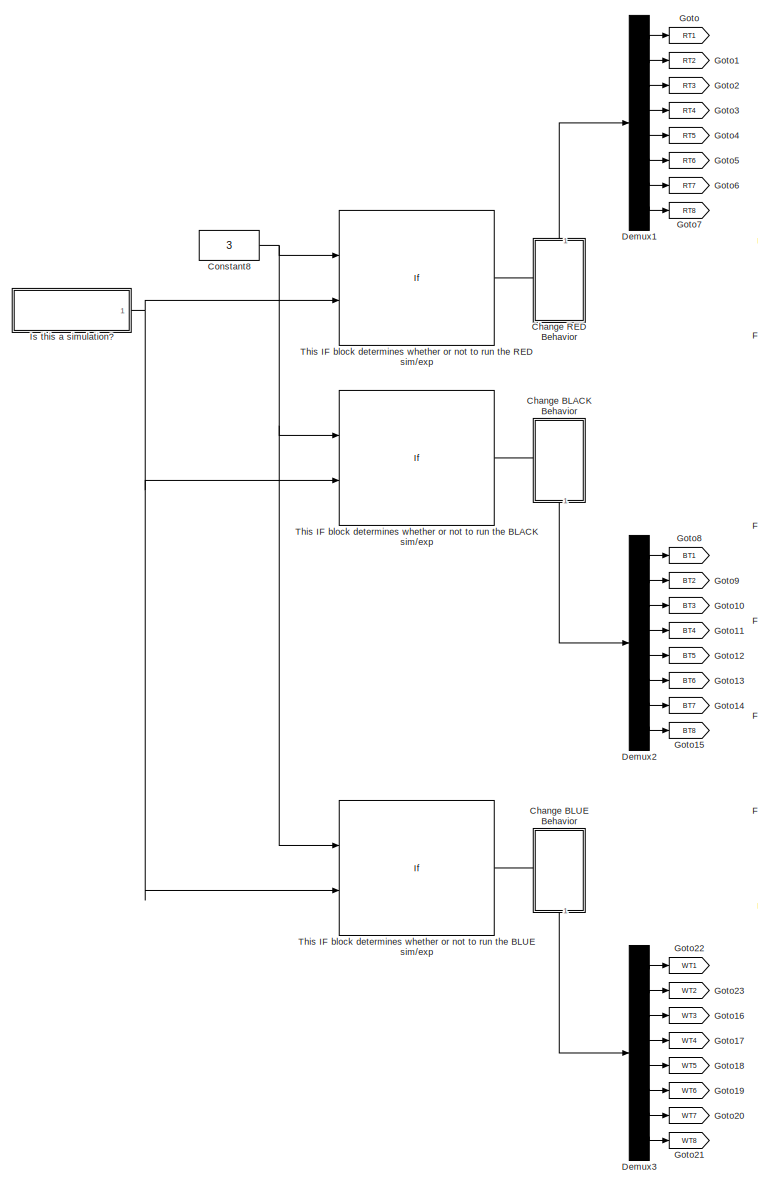
[diagram: root canvas - part 1/2, left side, full height]
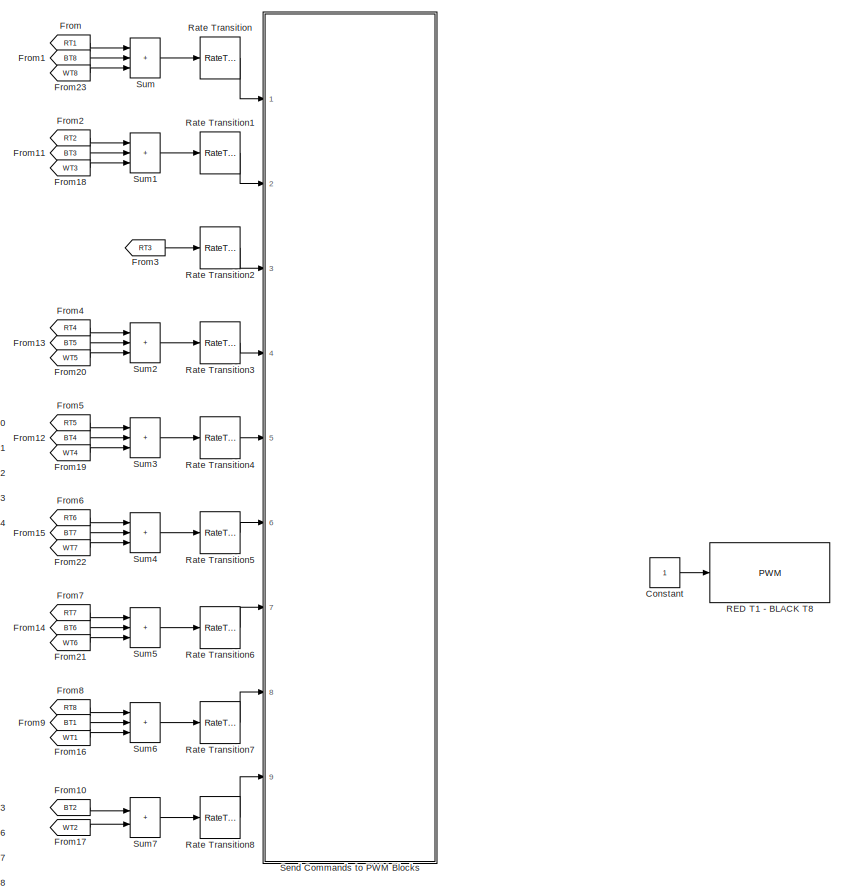
[diagram: root canvas - part 2/2, right side, full height]
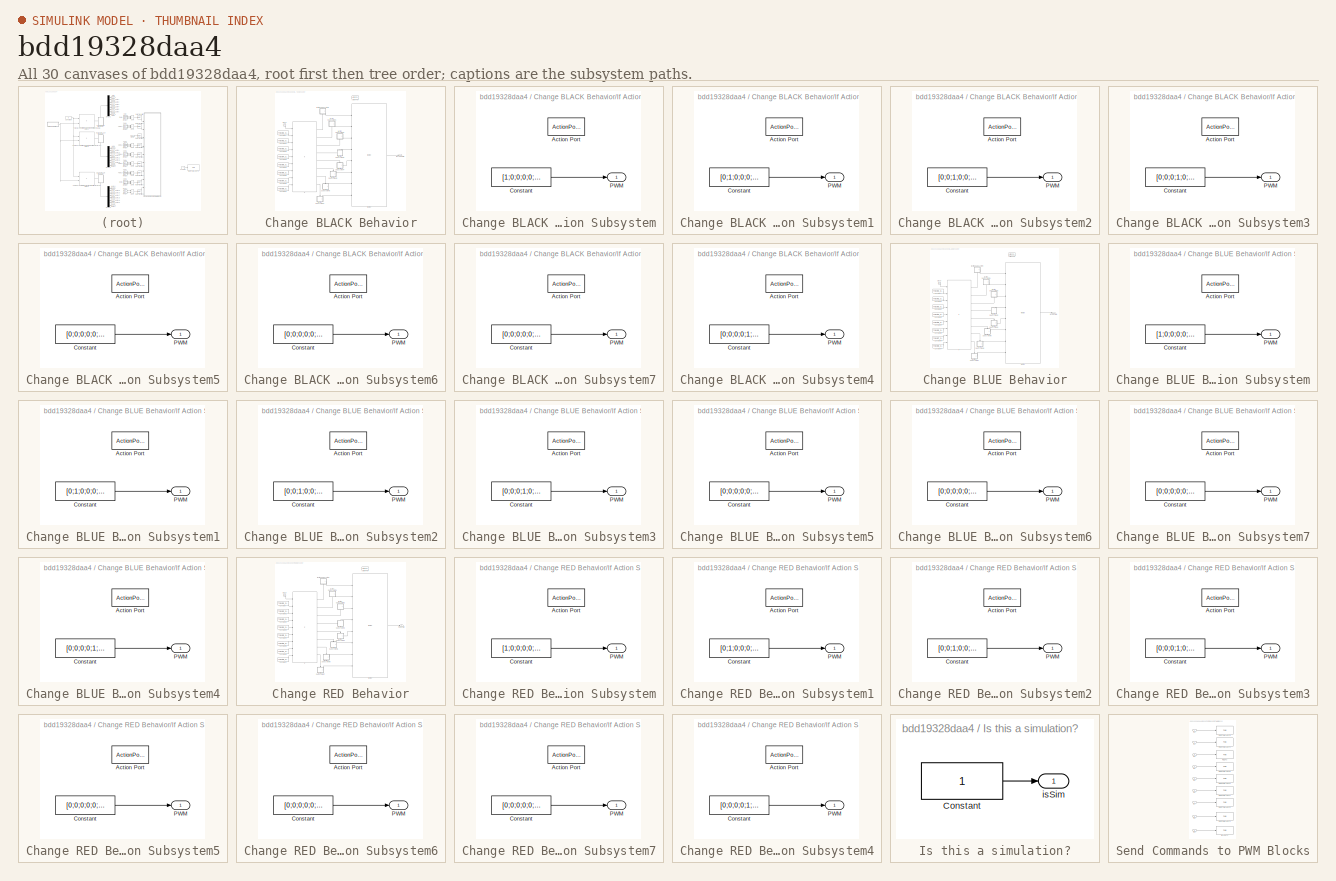
[diagram: thumbnail index - all 30 canvases of the model, root first then tree order]
MODEL slx_bdd19328daa4
KIND model
CONFIG AbsTol = auto
CONFIG EnableMultiTasking = on
CONFIG FixedStep = auto
CONFIG MaxStep = auto
CONFIG MinStep = auto
CONFIG RelTol = 1e-3
CONFIG SampleTimeConstraint = Unconstrained
CONFIG Solver = FixedStepAuto
CONFIG SolverName = FixedStepAuto
CONFIG StartTime = 0.0
CONFIG StopTime = 5
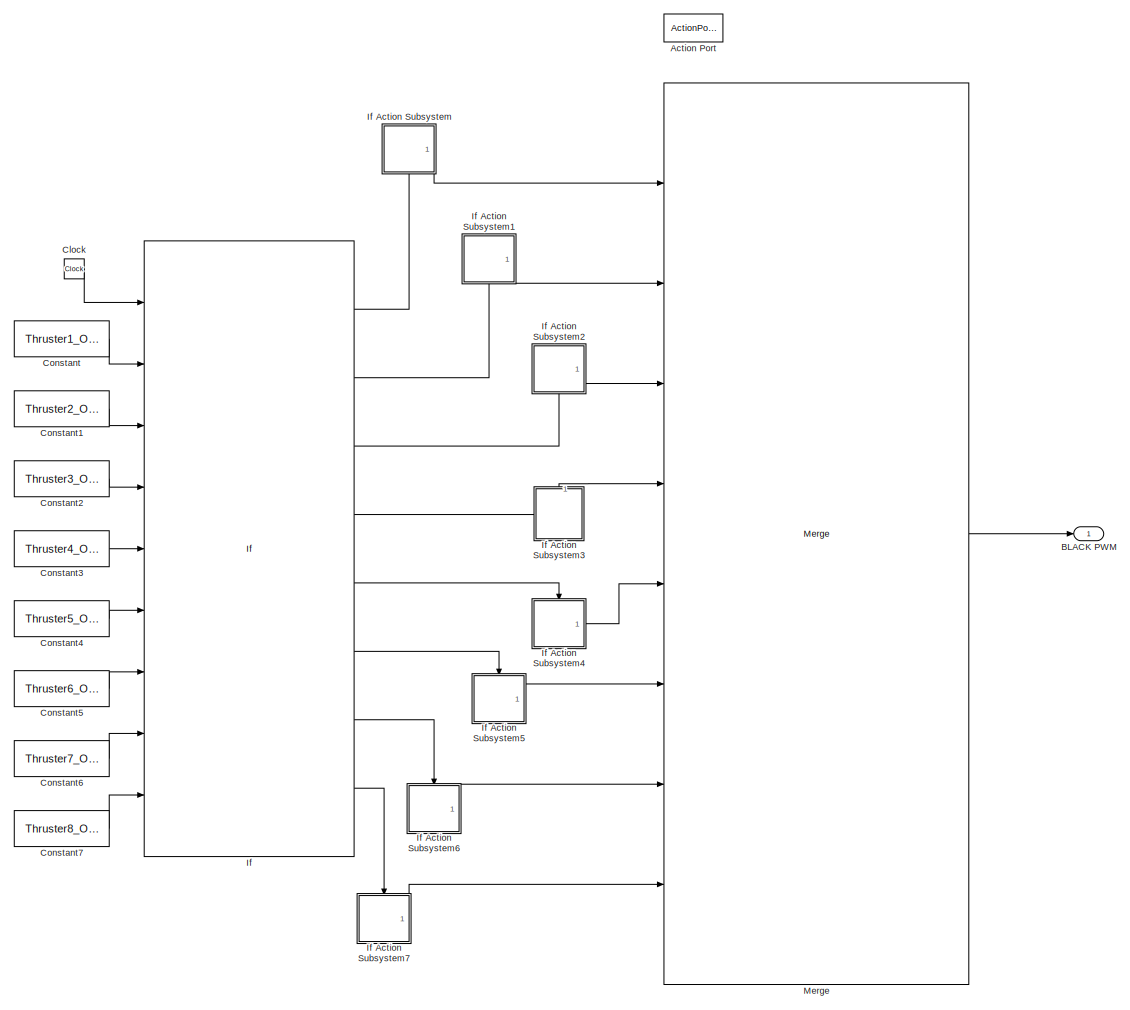
[diagram: Change BLACK Behavior - part 1/1, most of the canvas]
BLOCK [SubSystem] Change BLACK Behavior
  Commented = on
  NameLocation = right
  Ports = [0, 1, 0, 0, 0, 0, 0, 1]
  RequestExecContextInheritance = off
  TreatAsAtomicUnit = on
BLOCK [ActionPort] Change BLACK Behavior/Action Port
  ActionPortLabel = if(u1 == 2 | u2 == 1)
BLOCK [Outport] Change BLACK Behavior/BLACK PWM
  VectorParamsAs1DForOutWhenUnconnected = off
BLOCK [Clock] Change BLACK Behavior/Clock
BLOCK [Constant] Change BLACK Behavior/Constant
  Value = Thruster1_OnTime
BLOCK [Constant] Change BLACK Behavior/Constant1
  Value = Thruster2_OnTime
BLOCK [Constant] Change BLACK Behavior/Constant2
  Value = Thruster3_OnTime
BLOCK [Constant] Change BLACK Behavior/Constant3
  Value = Thruster4_OnTime
BLOCK [Constant] Change BLACK Behavior/Constant4
  Value = Thruster5_OnTime
BLOCK [Constant] Change BLACK Behavior/Constant5
  Value = Thruster6_OnTime
BLOCK [Constant] Change BLACK Behavior/Constant6
  Value = Thruster7_OnTime
BLOCK [Constant] Change BLACK Behavior/Constant7
  Value = Thruster8_OnTime
BLOCK [If] Change BLACK Behavior/If
  ElseIfExpressions = u1 < u3, u1 < u4, u1 < u5, u1 < u6, u1 < u7, u1 < u8, u1 < u9
  IfExpression = u1 < u2
  NumInputs = 9
  Ports = [9, 8]
  ShowElse = off
BLOCK [SubSystem] Change BLACK Behavior/If Action Subsystem
  NameLocation = top
  Ports = [0, 1, 0, 0, 0, 0, 0, 1]
  RequestExecContextInheritance = off
  TreatAsAtomicUnit = on
BLOCK [ActionPort] Change BLACK Behavior/If Action Subsystem/Action Port
  ActionPortLabel = if(u1 < u2)
BLOCK [Constant] Change BLACK Behavior/If Action Subsystem/Constant
  Value = [1;0;0;0;0;0;0;0]
BLOCK [Outport] Change BLACK Behavior/If Action Subsystem/PWM
  VectorParamsAs1DForOutWhenUnconnected = off
BLOCK [SubSystem] Change BLACK Behavior/If Action Subsystem1
  NameLocation = top
  Ports = [0, 1, 0, 0, 0, 0, 0, 1]
  RequestExecContextInheritance = off
  TreatAsAtomicUnit = on
BLOCK [ActionPort] Change BLACK Behavior/If Action Subsystem1/Action Port
  ActionPortLabel = elseif(u1 < u3)
BLOCK [Constant] Change BLACK Behavior/If Action Subsystem1/Constant
  Value = [0;1;0;0;0;0;0;0]
BLOCK [Outport] Change BLACK Behavior/If Action Subsystem1/PWM
  VectorParamsAs1DForOutWhenUnconnected = off
BLOCK [SubSystem] Change BLACK Behavior/If Action Subsystem2
  NameLocation = top
  Ports = [0, 1, 0, 0, 0, 0, 0, 1]
  RequestExecContextInheritance = off
  TreatAsAtomicUnit = on
BLOCK [ActionPort] Change BLACK Behavior/If Action Subsystem2/Action Port
  ActionPortLabel = elseif( u1 < u4)
BLOCK [Constant] Change BLACK Behavior/If Action Subsystem2/Constant
  Value = [0;0;1;0;0;0;0;0]
BLOCK [Outport] Change BLACK Behavior/If Action Subsystem2/PWM
  VectorParamsAs1DForOutWhenUnconnected = off
BLOCK [SubSystem] Change BLACK Behavior/If Action Subsystem3
  NameLocation = right
  Ports = [0, 1, 0, 0, 0, 0, 0, 1]
  RequestExecContextInheritance = off
  TreatAsAtomicUnit = on
BLOCK [ActionPort] Change BLACK Behavior/If Action Subsystem3/Action Port
  ActionPortLabel = elseif( u1 < u5)
BLOCK [Constant] Change BLACK Behavior/If Action Subsystem3/Constant
  Value = [0;0;0;1;0;0;0;0]
BLOCK [Outport] Change BLACK Behavior/If Action Subsystem3/PWM
  VectorParamsAs1DForOutWhenUnconnected = off
BLOCK [SubSystem] Change BLACK Behavior/If Action Subsystem4
  Ports = [0, 1, 0, 0, 0, 0, 0, 1]
  RequestExecContextInheritance = off
  TreatAsAtomicUnit = on
BLOCK [ActionPort] Change BLACK Behavior/If Action Subsystem4/Action Port
  ActionPortLabel = elseif( u1 < u6)
BLOCK [Constant] Change BLACK Behavior/If Action Subsystem4/Constant
  Value = [0;0;0;0;1;0;0;0]
BLOCK [Outport] Change BLACK Behavior/If Action Subsystem4/PWM
  VectorParamsAs1DForOutWhenUnconnected = off
BLOCK [SubSystem] Change BLACK Behavior/If Action Subsystem5
  Ports = [0, 1, 0, 0, 0, 0, 0, 1]
  RequestExecContextInheritance = off
  TreatAsAtomicUnit = on
BLOCK [ActionPort] Change BLACK Behavior/If Action Subsystem5/Action Port
  ActionPortLabel = elseif( u1 < u7)
BLOCK [Constant] Change BLACK Behavior/If Action Subsystem5/Constant
  Value = [0;0;0;0;0;1;0;0]
BLOCK [Outport] Change BLACK Behavior/If Action Subsystem5/PWM
  VectorParamsAs1DForOutWhenUnconnected = off
BLOCK [SubSystem] Change BLACK Behavior/If Action Subsystem6
  Ports = [0, 1, 0, 0, 0, 0, 0, 1]
  RequestExecContextInheritance = off
  TreatAsAtomicUnit = on
BLOCK [ActionPort] Change BLACK Behavior/If Action Subsystem6/Action Port
  ActionPortLabel = elseif( u1 < u8)
BLOCK [Constant] Change BLACK Behavior/If Action Subsystem6/Constant
  Value = [0;0;0;0;0;0;1;0]
BLOCK [Outport] Change BLACK Behavior/If Action Subsystem6/PWM
  VectorParamsAs1DForOutWhenUnconnected = off
BLOCK [SubSystem] Change BLACK Behavior/If Action Subsystem7
  Ports = [0, 1, 0, 0, 0, 0, 0, 1]
  RequestExecContextInheritance = off
  TreatAsAtomicUnit = on
BLOCK [ActionPort] Change BLACK Behavior/If Action Subsystem7/Action Port
  ActionPortLabel = elseif( u1 < u9)
BLOCK [Constant] Change BLACK Behavior/If Action Subsystem7/Constant
  Value = [0;0;0;0;0;0;0;1]
BLOCK [Outport] Change BLACK Behavior/If Action Subsystem7/PWM
  VectorParamsAs1DForOutWhenUnconnected = off
BLOCK [Merge] Change BLACK Behavior/Merge
  Inputs = 8
  Ports = [8, 1]
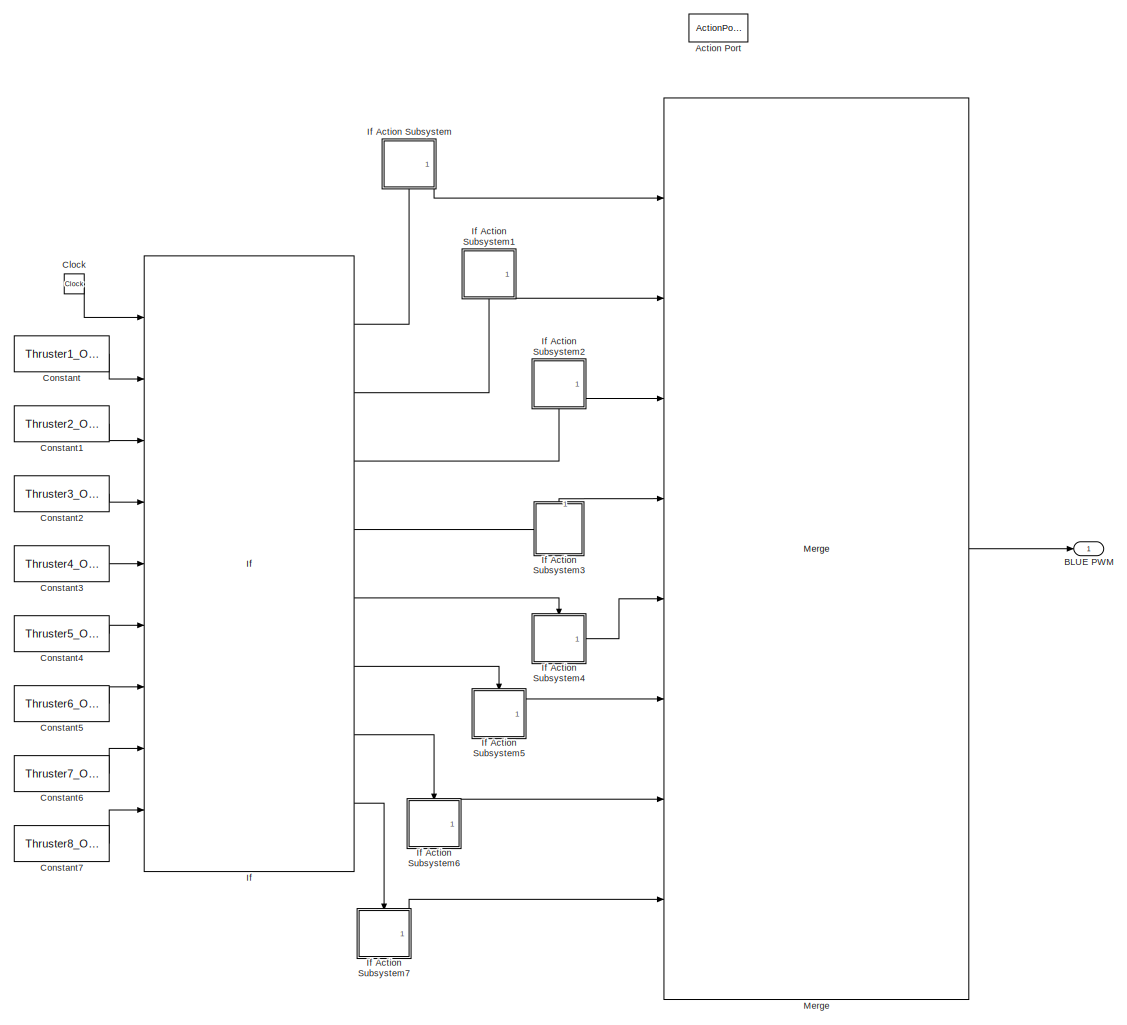
[diagram: Change BLUE Behavior - part 1/1, most of the canvas]
BLOCK [SubSystem] Change BLUE Behavior
  Commented = on
  NameLocation = right
  Ports = [0, 1, 0, 0, 0, 0, 0, 1]
  RequestExecContextInheritance = off
  TreatAsAtomicUnit = on
BLOCK [ActionPort] Change BLUE Behavior/Action Port
  ActionPortLabel = if(u1 == 3 | u2 == 1)
BLOCK [Outport] Change BLUE Behavior/BLUE PWM
  VectorParamsAs1DForOutWhenUnconnected = off
BLOCK [Clock] Change BLUE Behavior/Clock
BLOCK [Constant] Change BLUE Behavior/Constant
  Value = Thruster1_OnTime
BLOCK [Constant] Change BLUE Behavior/Constant1
  Value = Thruster2_OnTime
BLOCK [Constant] Change BLUE Behavior/Constant2
  Value = Thruster3_OnTime
BLOCK [Constant] Change BLUE Behavior/Constant3
  Value = Thruster4_OnTime
BLOCK [Constant] Change BLUE Behavior/Constant4
  Value = Thruster5_OnTime
BLOCK [Constant] Change BLUE Behavior/Constant5
  Value = Thruster6_OnTime
BLOCK [Constant] Change BLUE Behavior/Constant6
  Value = Thruster7_OnTime
BLOCK [Constant] Change BLUE Behavior/Constant7
  Value = Thruster8_OnTime
BLOCK [If] Change BLUE Behavior/If
  ElseIfExpressions = u1 < u3, u1 < u4, u1 < u5, u1 < u6, u1 < u7, u1 < u8, u1 < u9
  IfExpression = u1 < u2
  NumInputs = 9
  Ports = [9, 8]
  ShowElse = off
BLOCK [SubSystem] Change BLUE Behavior/If Action Subsystem
  NameLocation = top
  Ports = [0, 1, 0, 0, 0, 0, 0, 1]
  RequestExecContextInheritance = off
  TreatAsAtomicUnit = on
BLOCK [ActionPort] Change BLUE Behavior/If Action Subsystem/Action Port
  ActionPortLabel = if(u1 < u2)
BLOCK [Constant] Change BLUE Behavior/If Action Subsystem/Constant
  Value = [1;0;0;0;0;0;0;0]
BLOCK [Outport] Change BLUE Behavior/If Action Subsystem/PWM
  VectorParamsAs1DForOutWhenUnconnected = off
BLOCK [SubSystem] Change BLUE Behavior/If Action Subsystem1
  NameLocation = top
  Ports = [0, 1, 0, 0, 0, 0, 0, 1]
  RequestExecContextInheritance = off
  TreatAsAtomicUnit = on
BLOCK [ActionPort] Change BLUE Behavior/If Action Subsystem1/Action Port
  ActionPortLabel = elseif(u1 < u3)
BLOCK [Constant] Change BLUE Behavior/If Action Subsystem1/Constant
  Value = [0;1;0;0;0;0;0;0]
BLOCK [Outport] Change BLUE Behavior/If Action Subsystem1/PWM
  VectorParamsAs1DForOutWhenUnconnected = off
BLOCK [SubSystem] Change BLUE Behavior/If Action Subsystem2
  NameLocation = top
  Ports = [0, 1, 0, 0, 0, 0, 0, 1]
  RequestExecContextInheritance = off
  TreatAsAtomicUnit = on
BLOCK [ActionPort] Change BLUE Behavior/If Action Subsystem2/Action Port
  ActionPortLabel = elseif( u1 < u4)
BLOCK [Constant] Change BLUE Behavior/If Action Subsystem2/Constant
  Value = [0;0;1;0;0;0;0;0]
BLOCK [Outport] Change BLUE Behavior/If Action Subsystem2/PWM
  VectorParamsAs1DForOutWhenUnconnected = off
BLOCK [SubSystem] Change BLUE Behavior/If Action Subsystem3
  NameLocation = right
  Ports = [0, 1, 0, 0, 0, 0, 0, 1]
  RequestExecContextInheritance = off
  TreatAsAtomicUnit = on
BLOCK [ActionPort] Change BLUE Behavior/If Action Subsystem3/Action Port
  ActionPortLabel = elseif( u1 < u5)
BLOCK [Constant] Change BLUE Behavior/If Action Subsystem3/Constant
  Value = [0;0;0;1;0;0;0;0]
BLOCK [Outport] Change BLUE Behavior/If Action Subsystem3/PWM
  VectorParamsAs1DForOutWhenUnconnected = off
BLOCK [SubSystem] Change BLUE Behavior/If Action Subsystem4
  Ports = [0, 1, 0, 0, 0, 0, 0, 1]
  RequestExecContextInheritance = off
  TreatAsAtomicUnit = on
BLOCK [ActionPort] Change BLUE Behavior/If Action Subsystem4/Action Port
  ActionPortLabel = elseif( u1 < u6)
BLOCK [Constant] Change BLUE Behavior/If Action Subsystem4/Constant
  Value = [0;0;0;0;1;0;0;0]
BLOCK [Outport] Change BLUE Behavior/If Action Subsystem4/PWM
  VectorParamsAs1DForOutWhenUnconnected = off
BLOCK [SubSystem] Change BLUE Behavior/If Action Subsystem5
  Ports = [0, 1, 0, 0, 0, 0, 0, 1]
  RequestExecContextInheritance = off
  TreatAsAtomicUnit = on
BLOCK [ActionPort] Change BLUE Behavior/If Action Subsystem5/Action Port
  ActionPortLabel = elseif( u1 < u7)
BLOCK [Constant] Change BLUE Behavior/If Action Subsystem5/Constant
  Value = [0;0;0;0;0;1;0;0]
BLOCK [Outport] Change BLUE Behavior/If Action Subsystem5/PWM
  VectorParamsAs1DForOutWhenUnconnected = off
BLOCK [SubSystem] Change BLUE Behavior/If Action Subsystem6
  Ports = [0, 1, 0, 0, 0, 0, 0, 1]
  RequestExecContextInheritance = off
  TreatAsAtomicUnit = on
BLOCK [ActionPort] Change BLUE Behavior/If Action Subsystem6/Action Port
  ActionPortLabel = elseif( u1 < u8)
BLOCK [Constant] Change BLUE Behavior/If Action Subsystem6/Constant
  Value = [0;0;0;0;0;0;1;0]
BLOCK [Outport] Change BLUE Behavior/If Action Subsystem6/PWM
  VectorParamsAs1DForOutWhenUnconnected = off
BLOCK [SubSystem] Change BLUE Behavior/If Action Subsystem7
  Ports = [0, 1, 0, 0, 0, 0, 0, 1]
  RequestExecContextInheritance = off
  TreatAsAtomicUnit = on
BLOCK [ActionPort] Change BLUE Behavior/If Action Subsystem7/Action Port
  ActionPortLabel = elseif( u1 < u9)
BLOCK [Constant] Change BLUE Behavior/If Action Subsystem7/Constant
  Value = [0;0;0;0;0;0;0;1]
BLOCK [Outport] Change BLUE Behavior/If Action Subsystem7/PWM
  VectorParamsAs1DForOutWhenUnconnected = off
BLOCK [Merge] Change BLUE Behavior/Merge
  Inputs = 8
  Ports = [8, 1]
BLOCK [SubSystem] Change RED Behavior
  Commented = on
  NameLocation = right
  Ports = [0, 1, 0, 0, 0, 0, 0, 1]
  RequestExecContextInheritance = off
  TreatAsAtomicUnit = on
BLOCK [ActionPort] Change RED Behavior/Action Port
  ActionPortLabel = if(u1 == 1 | u2 == 1)
BLOCK [Clock] Change RED Behavior/Clock
BLOCK [Constant] Change RED Behavior/Constant
  Value = Thruster1_OnTime
BLOCK [Constant] Change RED Behavior/Constant1
  Value = Thruster2_OnTime
BLOCK [Constant] Change RED Behavior/Constant2
  Value = Thruster3_OnTime
BLOCK [Constant] Change RED Behavior/Constant3
  Value = Thruster4_OnTime
BLOCK [Constant] Change RED Behavior/Constant4
  Value = Thruster5_OnTime
BLOCK [Constant] Change RED Behavior/Constant5
  Value = Thruster6_OnTime
BLOCK [Constant] Change RED Behavior/Constant6
  Value = Thruster7_OnTime
BLOCK [Constant] Change RED Behavior/Constant7
  Value = Thruster8_OnTime
BLOCK [If] Change RED Behavior/If
  ElseIfExpressions = u1 < u3, u1 < u4, u1 < u5, u1 < u6, u1 < u7, u1 < u8, u1 < u9
  IfExpression = u1 < u2
  NumInputs = 9
  Ports = [9, 8]
  ShowElse = off
BLOCK [SubSystem] Change RED Behavior/If Action Subsystem
  NameLocation = top
  Ports = [0, 1, 0, 0, 0, 0, 0, 1]
  RequestExecContextInheritance = off
  TreatAsAtomicUnit = on
BLOCK [ActionPort] Change RED Behavior/If Action Subsystem/Action Port
  ActionPortLabel = if(u1 < u2)
BLOCK [Constant] Change RED Behavior/If Action Subsystem/Constant
  Value = [1;0;0;0;0;0;0;0]
BLOCK [Outport] Change RED Behavior/If Action Subsystem/PWM
  VectorParamsAs1DForOutWhenUnconnected = off
BLOCK [SubSystem] Change RED Behavior/If Action Subsystem1
  NameLocation = top
  Ports = [0, 1, 0, 0, 0, 0, 0, 1]
  RequestExecContextInheritance = off
  TreatAsAtomicUnit = on
BLOCK [ActionPort] Change RED Behavior/If Action Subsystem1/Action Port
  ActionPortLabel = elseif(u1 < u3)
BLOCK [Constant] Change RED Behavior/If Action Subsystem1/Constant
  Value = [0;1;0;0;0;0;0;0]
BLOCK [Outport] Change RED Behavior/If Action Subsystem1/PWM
  VectorParamsAs1DForOutWhenUnconnected = off
BLOCK [SubSystem] Change RED Behavior/If Action Subsystem2
  NameLocation = top
  Ports = [0, 1, 0, 0, 0, 0, 0, 1]
  RequestExecContextInheritance = off
  TreatAsAtomicUnit = on
BLOCK [ActionPort] Change RED Behavior/If Action Subsystem2/Action Port
  ActionPortLabel = elseif( u1 < u4)
BLOCK [Constant] Change RED Behavior/If Action Subsystem2/Constant
  Value = [0;0;1;0;0;0;0;0]
BLOCK [Outport] Change RED Behavior/If Action Subsystem2/PWM
  VectorParamsAs1DForOutWhenUnconnected = off
BLOCK [SubSystem] Change RED Behavior/If Action Subsystem3
  NameLocation = right
  Ports = [0, 1, 0, 0, 0, 0, 0, 1]
  RequestExecContextInheritance = off
  TreatAsAtomicUnit = on
BLOCK [ActionPort] Change RED Behavior/If Action Subsystem3/Action Port
  ActionPortLabel = elseif( u1 < u5)
BLOCK [Constant] Change RED Behavior/If Action Subsystem3/Constant
  Value = [0;0;0;1;0;0;0;0]
BLOCK [Outport] Change RED Behavior/If Action Subsystem3/PWM
  VectorParamsAs1DForOutWhenUnconnected = off
BLOCK [SubSystem] Change RED Behavior/If Action Subsystem4
  Ports = [0, 1, 0, 0, 0, 0, 0, 1]
  RequestExecContextInheritance = off
  TreatAsAtomicUnit = on
BLOCK [ActionPort] Change RED Behavior/If Action Subsystem4/Action Port
  ActionPortLabel = elseif( u1 < u6)
BLOCK [Constant] Change RED Behavior/If Action Subsystem4/Constant
  Value = [0;0;0;0;1;0;0;0]
BLOCK [Outport] Change RED Behavior/If Action Subsystem4/PWM
  VectorParamsAs1DForOutWhenUnconnected = off
BLOCK [SubSystem] Change RED Behavior/If Action Subsystem5
  Ports = [0, 1, 0, 0, 0, 0, 0, 1]
  RequestExecContextInheritance = off
  TreatAsAtomicUnit = on
BLOCK [ActionPort] Change RED Behavior/If Action Subsystem5/Action Port
  ActionPortLabel = elseif( u1 < u7)
BLOCK [Constant] Change RED Behavior/If Action Subsystem5/Constant
  Value = [0;0;0;0;0;1;0;0]
BLOCK [Outport] Change RED Behavior/If Action Subsystem5/PWM
  VectorParamsAs1DForOutWhenUnconnected = off
BLOCK [SubSystem] Change RED Behavior/If Action Subsystem6
  Ports = [0, 1, 0, 0, 0, 0, 0, 1]
  RequestExecContextInheritance = off
  TreatAsAtomicUnit = on
BLOCK [ActionPort] Change RED Behavior/If Action Subsystem6/Action Port
  ActionPortLabel = elseif( u1 < u8)
BLOCK [Constant] Change RED Behavior/If Action Subsystem6/Constant
  Value = [0;0;0;0;0;0;1;0]
BLOCK [Outport] Change RED Behavior/If Action Subsystem6/PWM
  VectorParamsAs1DForOutWhenUnconnected = off
BLOCK [SubSystem] Change RED Behavior/If Action Subsystem7
  Ports = [0, 1, 0, 0, 0, 0, 0, 1]
  RequestExecContextInheritance = off
  TreatAsAtomicUnit = on
BLOCK [ActionPort] Change RED Behavior/If Action Subsystem7/Action Port
  ActionPortLabel = elseif( u1 < u9)
BLOCK [Constant] Change RED Behavior/If Action Subsystem7/Constant
  Value = [0;0;0;0;0;0;0;1]
BLOCK [Outport] Change RED Behavior/If Action Subsystem7/PWM
  VectorParamsAs1DForOutWhenUnconnected = off
BLOCK [Merge] Change RED Behavior/Merge
  Inputs = 8
  Ports = [8, 1]
BLOCK [Outport] Change RED Behavior/RED PWM
  VectorParamsAs1DForOutWhenUnconnected = off
BLOCK [Constant] Constant
BLOCK [Constant] Constant8
  Commented = on
  Value = 3
BLOCK [Demux] Demux1
  Commented = on
  Outputs = 8
  Ports = [1, 8]
BLOCK [Demux] Demux2
  Commented = on
  Outputs = 8
  Ports = [1, 8]
BLOCK [Demux] Demux3
  Commented = on
  Outputs = 8
  Ports = [1, 8]
BLOCK [From] From
  Commented = on
  GotoTag = RT1
BLOCK [From] From1
  Commented = on
  GotoTag = BT8
BLOCK [From] From10
  Commented = on
  GotoTag = BT2
BLOCK [From] From11
  Commented = on
  GotoTag = BT3
BLOCK [From] From12
  Commented = on
  GotoTag = BT4
BLOCK [From] From13
  Commented = on
  GotoTag = BT5
BLOCK [From] From14
  Commented = on
  GotoTag = BT6
BLOCK [From] From15
  Commented = on
  GotoTag = BT7
BLOCK [From] From16
  Commented = on
  GotoTag = WT1
BLOCK [From] From17
  Commented = on
  GotoTag = WT2
BLOCK [From] From18
  Commented = on
  GotoTag = WT3
BLOCK [From] From19
  Commented = on
  GotoTag = WT4
BLOCK [From] From2
  Commented = on
  GotoTag = RT2
BLOCK [From] From20
  Commented = on
  GotoTag = WT5
BLOCK [From] From21
  Commented = on
  GotoTag = WT6
BLOCK [From] From22
  Commented = on
  GotoTag = WT7
BLOCK [From] From23
  Commented = on
  GotoTag = WT8
BLOCK [From] From3
  Commented = on
  GotoTag = RT3
BLOCK [From] From4
  Commented = on
  GotoTag = RT4
BLOCK [From] From5
  Commented = on
  GotoTag = RT5
BLOCK [From] From6
  Commented = on
  GotoTag = RT6
BLOCK [From] From7
  Commented = on
  GotoTag = RT7
BLOCK [From] From8
  Commented = on
  GotoTag = RT8
BLOCK [From] From9
  Commented = on
  GotoTag = BT1
BLOCK [Goto] Goto
  Commented = on
  GotoTag = RT1
BLOCK [Goto] Goto1
  Commented = on
  GotoTag = RT2
BLOCK [Goto] Goto10
  Commented = on
  GotoTag = BT3
BLOCK [Goto] Goto11
  Commented = on
  GotoTag = BT4
BLOCK [Goto] Goto12
  Commented = on
  GotoTag = BT5
BLOCK [Goto] Goto13
  Commented = on
  GotoTag = BT6
BLOCK [Goto] Goto14
  Commented = on
  GotoTag = BT7
BLOCK [Goto] Goto15
  Commented = on
  GotoTag = BT8
BLOCK [Goto] Goto16
  Commented = on
  GotoTag = WT3
BLOCK [Goto] Goto17
  Commented = on
  GotoTag = WT4
BLOCK [Goto] Goto18
  Commented = on
  GotoTag = WT5
BLOCK [Goto] Goto19
  Commented = on
  GotoTag = WT6
BLOCK [Goto] Goto2
  Commented = on
  GotoTag = RT3
BLOCK [Goto] Goto20
  Commented = on
  GotoTag = WT7
BLOCK [Goto] Goto21
  Commented = on
  GotoTag = WT8
BLOCK [Goto] Goto22
  Commented = on
  GotoTag = WT1
BLOCK [Goto] Goto23
  Commented = on
  GotoTag = WT2
BLOCK [Goto] Goto3
  Commented = on
  GotoTag = RT4
BLOCK [Goto] Goto4
  Commented = on
  GotoTag = RT5
BLOCK [Goto] Goto5
  Commented = on
  GotoTag = RT6
BLOCK [Goto] Goto6
  Commented = on
  GotoTag = RT7
BLOCK [Goto] Goto7
  Commented = on
  GotoTag = RT8
BLOCK [Goto] Goto8
  Commented = on
  GotoTag = BT1
BLOCK [Goto] Goto9
  Commented = on
  GotoTag = BT2
BLOCK [SubSystem] Is this a simulation?
  Commented = on
  Ports = [0, 1]
  RequestExecContextInheritance = off
BLOCK [Constant] Is this a simulation?/Constant
  SampleTime = -1
BLOCK [Outport] Is this a simulation?/isSim
  VectorParamsAs1DForOutWhenUnconnected = off
BLOCK [Reference] RED T1 - BLACK T8  REF=raspberrypiBasiclib/PWM
  Ports = [1]
  SourceBlock = raspberrypiBasiclib/PWM
  SourceProductBaseCode = RASPPI
  SourceType = raspi.internal.PWMBlock
BLOCK [RateTransition] Rate Transition
  Commented = on
  OutPortSampleTime = 0.1
BLOCK [RateTransition] Rate Transition1
  Commented = on
  OutPortSampleTime = 0.1
BLOCK [RateTransition] Rate Transition2
  Commented = on
  OutPortSampleTime = 0.1
BLOCK [RateTransition] Rate Transition3
  Commented = on
  OutPortSampleTime = 0.1
BLOCK [RateTransition] Rate Transition4
  Commented = on
  OutPortSampleTime = 0.1
BLOCK [RateTransition] Rate Transition5
  Commented = on
  OutPortSampleTime = 0.1
BLOCK [RateTransition] Rate Transition6
  Commented = on
  OutPortSampleTime = 0.1
BLOCK [RateTransition] Rate Transition7
  Commented = on
  OutPortSampleTime = 0.1
BLOCK [RateTransition] Rate Transition8
  Commented = on
  OutPortSampleTime = 0.1
BLOCK [SubSystem] Send Commands to PWM Blocks
  Commented = on
  Ports = [9]
  RequestExecContextInheritance = off
  SystemSampleTime = 0.1
  TreatAsAtomicUnit = on
BLOCK [Reference] Send Commands to PWM Blocks/BLACK T2  REF=raspberrypiBasiclib/PWM
  Ports = [1]
  SourceBlock = raspberrypiBasiclib/PWM
  SourceProductBaseCode = RASPPI
  SourceType = raspi.internal.PWMBlock
BLOCK [Inport] Send Commands to PWM Blocks/In1
BLOCK [Inport] Send Commands to PWM Blocks/In2
  Port = 2
BLOCK [Inport] Send Commands to PWM Blocks/In3
  Port = 3
BLOCK [Inport] Send Commands to PWM Blocks/In4
  Port = 4
BLOCK [Inport] Send Commands to PWM Blocks/In5
  Port = 5
BLOCK [Inport] Send Commands to PWM Blocks/In6
  Port = 6
BLOCK [Inport] Send Commands to PWM Blocks/In7
  Port = 7
BLOCK [Inport] Send Commands to PWM Blocks/In8
  Port = 8
BLOCK [Inport] Send Commands to PWM Blocks/In9
  Port = 9
BLOCK [Reference] Send Commands to PWM Blocks/RED T1 - BLACK T8  REF=raspberrypiBasiclib/PWM
  Ports = [1]
  SourceBlock = raspberrypiBasiclib/PWM
  SourceProductBaseCode = RASPPI
  SourceType = raspi.internal.PWMBlock
BLOCK [Reference] Send Commands to PWM Blocks/RED T2 - BLACK T3  REF=raspberrypiBasiclib/PWM
  Ports = [1]
  SourceBlock = raspberrypiBasiclib/PWM
  SourceProductBaseCode = RASPPI
  SourceType = raspi.internal.PWMBlock
BLOCK [Reference] Send Commands to PWM Blocks/RED T3  REF=raspberrypiBasiclib/PWM
  Ports = [1]
  SourceBlock = raspberrypiBasiclib/PWM
  SourceProductBaseCode = RASPPI
  SourceType = raspi.internal.PWMBlock
BLOCK [Reference] Send Commands to PWM Blocks/RED T4 - BLACK T5  REF=raspberrypiBasiclib/PWM
  Ports = [1]
  SourceBlock = raspberrypiBasiclib/PWM
  SourceProductBaseCode = RASPPI
  SourceType = raspi.internal.PWMBlock
BLOCK [Reference] Send Commands to PWM Blocks/RED T5 - BLACK T4  REF=raspberrypiBasiclib/PWM
  Ports = [1]
  SourceBlock = raspberrypiBasiclib/PWM
  SourceProductBaseCode = RASPPI
  SourceType = raspi.internal.PWMBlock
BLOCK [Reference] Send Commands to PWM Blocks/RED T6 - BLACK T7  REF=raspberrypiBasiclib/PWM
  Ports = [1]
  SourceBlock = raspberrypiBasiclib/PWM
  SourceProductBaseCode = RASPPI
  SourceType = raspi.internal.PWMBlock
BLOCK [Reference] Send Commands to PWM Blocks/RED T7 - BLACK T6  REF=raspberrypiBasiclib/PWM
  Ports = [1]
  SourceBlock = raspberrypiBasiclib/PWM
  SourceProductBaseCode = RASPPI
  SourceType = raspi.internal.PWMBlock
BLOCK [Reference] Send Commands to PWM Blocks/RED T8 - BLACK T1  REF=raspberrypiBasiclib/PWM
  Ports = [1]
  SourceBlock = raspberrypiBasiclib/PWM
  SourceProductBaseCode = RASPPI
  SourceType = raspi.internal.PWMBlock
BLOCK [Sum] Sum
  Commented = on
  IconShape = rectangular
  Inputs = +++
  Ports = [3, 1]
BLOCK [Sum] Sum1
  Commented = on
  IconShape = rectangular
  Inputs = +++
  Ports = [3, 1]
BLOCK [Sum] Sum2
  Commented = on
  IconShape = rectangular
  Inputs = +++
  Ports = [3, 1]
BLOCK [Sum] Sum3
  Commented = on
  IconShape = rectangular
  Inputs = +++
  Ports = [3, 1]
BLOCK [Sum] Sum4
  Commented = on
  IconShape = rectangular
  Inputs = +++
  Ports = [3, 1]
BLOCK [Sum] Sum5
  Commented = on
  IconShape = rectangular
  Inputs = +++
  Ports = [3, 1]
BLOCK [Sum] Sum6
  Commented = on
  IconShape = rectangular
  Inputs = +++
  Ports = [3, 1]
BLOCK [Sum] Sum7
  Commented = on
  IconShape = rectangular
  Ports = [2, 1]
BLOCK [If] This IF block determines whether or not to run the BLACK sim//exp
  Commented = on
  IfExpression = u1 == 2 | u2 == 1
  NumInputs = 2
  Ports = [2, 1]
  ShowElse = off
BLOCK [If] This IF block determines whether or not to run the BLUE sim//exp
  Commented = on
  IfExpression = u1 == 3 | u2 == 1
  NumInputs = 2
  Ports = [2, 1]
  ShowElse = off
BLOCK [If] This IF block determines whether or not to run the RED sim//exp 
  Commented = on
  IfExpression = u1 == 1 | u2 == 1
  NumInputs = 2
  Ports = [2, 1]
  ShowElse = off
LINE Change BLACK Behavior/Clock:1 -> Change BLACK Behavior/If:1
LINE Change BLACK Behavior/Constant1:1 -> Change BLACK Behavior/If:3
LINE Change BLACK Behavior/Constant2:1 -> Change BLACK Behavior/If:4
LINE Change BLACK Behavior/Constant3:1 -> Change BLACK Behavior/If:5
LINE Change BLACK Behavior/Constant4:1 -> Change BLACK Behavior/If:6
LINE Change BLACK Behavior/Constant5:1 -> Change BLACK Behavior/If:7
LINE Change BLACK Behavior/Constant6:1 -> Change BLACK Behavior/If:8
LINE Change BLACK Behavior/Constant7:1 -> Change BLACK Behavior/If:9
LINE Change BLACK Behavior/Constant:1 -> Change BLACK Behavior/If:2
LINE Change BLACK Behavior/If Action Subsystem/Constant:1 -> Change BLACK Behavior/If Action Subsystem/PWM:1
LINE Change BLACK Behavior/If Action Subsystem1/Constant:1 -> Change BLACK Behavior/If Action Subsystem1/PWM:1
LINE Change BLACK Behavior/If Action Subsystem1:1 -> Change BLACK Behavior/Merge:2
LINE Change BLACK Behavior/If Action Subsystem2/Constant:1 -> Change BLACK Behavior/If Action Subsystem2/PWM:1
LINE Change BLACK Behavior/If Action Subsystem2:1 -> Change BLACK Behavior/Merge:3
LINE Change BLACK Behavior/If Action Subsystem3/Constant:1 -> Change BLACK Behavior/If Action Subsystem3/PWM:1
LINE Change BLACK Behavior/If Action Subsystem3:1 -> Change BLACK Behavior/Merge:4
LINE Change BLACK Behavior/If Action Subsystem4/Constant:1 -> Change BLACK Behavior/If Action Subsystem4/PWM:1
LINE Change BLACK Behavior/If Action Subsystem4:1 -> Change BLACK Behavior/Merge:5
LINE Change BLACK Behavior/If Action Subsystem5/Constant:1 -> Change BLACK Behavior/If Action Subsystem5/PWM:1
LINE Change BLACK Behavior/If Action Subsystem5:1 -> Change BLACK Behavior/Merge:6
LINE Change BLACK Behavior/If Action Subsystem6/Constant:1 -> Change BLACK Behavior/If Action Subsystem6/PWM:1
LINE Change BLACK Behavior/If Action Subsystem6:1 -> Change BLACK Behavior/Merge:7
LINE Change BLACK Behavior/If Action Subsystem7/Constant:1 -> Change BLACK Behavior/If Action Subsystem7/PWM:1
LINE Change BLACK Behavior/If Action Subsystem7:1 -> Change BLACK Behavior/Merge:8
LINE Change BLACK Behavior/If Action Subsystem:1 -> Change BLACK Behavior/Merge:1
LINE Change BLACK Behavior/If:1 -> Change BLACK Behavior/If Action Subsystem:ifaction
LINE Change BLACK Behavior/If:2 -> Change BLACK Behavior/If Action Subsystem1:ifaction
LINE Change BLACK Behavior/If:3 -> Change BLACK Behavior/If Action Subsystem2:ifaction
LINE Change BLACK Behavior/If:4 -> Change BLACK Behavior/If Action Subsystem3:ifaction
LINE Change BLACK Behavior/If:5 -> Change BLACK Behavior/If Action Subsystem4:ifaction
LINE Change BLACK Behavior/If:6 -> Change BLACK Behavior/If Action Subsystem5:ifaction
LINE Change BLACK Behavior/If:7 -> Change BLACK Behavior/If Action Subsystem6:ifaction
LINE Change BLACK Behavior/If:8 -> Change BLACK Behavior/If Action Subsystem7:ifaction
LINE Change BLACK Behavior/Merge:1 -> Change BLACK Behavior/BLACK PWM:1
LINE Change BLACK Behavior:1 -> Demux2:1
LINE Change BLUE Behavior/Clock:1 -> Change BLUE Behavior/If:1
LINE Change BLUE Behavior/Constant1:1 -> Change BLUE Behavior/If:3
LINE Change BLUE Behavior/Constant2:1 -> Change BLUE Behavior/If:4
LINE Change BLUE Behavior/Constant3:1 -> Change BLUE Behavior/If:5
LINE Change BLUE Behavior/Constant4:1 -> Change BLUE Behavior/If:6
LINE Change BLUE Behavior/Constant5:1 -> Change BLUE Behavior/If:7
LINE Change BLUE Behavior/Constant6:1 -> Change BLUE Behavior/If:8
LINE Change BLUE Behavior/Constant7:1 -> Change BLUE Behavior/If:9
LINE Change BLUE Behavior/Constant:1 -> Change BLUE Behavior/If:2
LINE Change BLUE Behavior/If Action Subsystem/Constant:1 -> Change BLUE Behavior/If Action Subsystem/PWM:1
LINE Change BLUE Behavior/If Action Subsystem1/Constant:1 -> Change BLUE Behavior/If Action Subsystem1/PWM:1
LINE Change BLUE Behavior/If Action Subsystem1:1 -> Change BLUE Behavior/Merge:2
LINE Change BLUE Behavior/If Action Subsystem2/Constant:1 -> Change BLUE Behavior/If Action Subsystem2/PWM:1
LINE Change BLUE Behavior/If Action Subsystem2:1 -> Change BLUE Behavior/Merge:3
LINE Change BLUE Behavior/If Action Subsystem3/Constant:1 -> Change BLUE Behavior/If Action Subsystem3/PWM:1
LINE Change BLUE Behavior/If Action Subsystem3:1 -> Change BLUE Behavior/Merge:4
LINE Change BLUE Behavior/If Action Subsystem4/Constant:1 -> Change BLUE Behavior/If Action Subsystem4/PWM:1
LINE Change BLUE Behavior/If Action Subsystem4:1 -> Change BLUE Behavior/Merge:5
LINE Change BLUE Behavior/If Action Subsystem5/Constant:1 -> Change BLUE Behavior/If Action Subsystem5/PWM:1
LINE Change BLUE Behavior/If Action Subsystem5:1 -> Change BLUE Behavior/Merge:6
LINE Change BLUE Behavior/If Action Subsystem6/Constant:1 -> Change BLUE Behavior/If Action Subsystem6/PWM:1
LINE Change BLUE Behavior/If Action Subsystem6:1 -> Change BLUE Behavior/Merge:7
LINE Change BLUE Behavior/If Action Subsystem7/Constant:1 -> Change BLUE Behavior/If Action Subsystem7/PWM:1
LINE Change BLUE Behavior/If Action Subsystem7:1 -> Change BLUE Behavior/Merge:8
LINE Change BLUE Behavior/If Action Subsystem:1 -> Change BLUE Behavior/Merge:1
LINE Change BLUE Behavior/If:1 -> Change BLUE Behavior/If Action Subsystem:ifaction
LINE Change BLUE Behavior/If:2 -> Change BLUE Behavior/If Action Subsystem1:ifaction
LINE Change BLUE Behavior/If:3 -> Change BLUE Behavior/If Action Subsystem2:ifaction
LINE Change BLUE Behavior/If:4 -> Change BLUE Behavior/If Action Subsystem3:ifaction
LINE Change BLUE Behavior/If:5 -> Change BLUE Behavior/If Action Subsystem4:ifaction
LINE Change BLUE Behavior/If:6 -> Change BLUE Behavior/If Action Subsystem5:ifaction
LINE Change BLUE Behavior/If:7 -> Change BLUE Behavior/If Action Subsystem6:ifaction
LINE Change BLUE Behavior/If:8 -> Change BLUE Behavior/If Action Subsystem7:ifaction
LINE Change BLUE Behavior/Merge:1 -> Change BLUE Behavior/BLUE PWM:1
LINE Change BLUE Behavior:1 -> Demux3:1
LINE Change RED Behavior/Clock:1 -> Change RED Behavior/If:1
LINE Change RED Behavior/Constant1:1 -> Change RED Behavior/If:3
LINE Change RED Behavior/Constant2:1 -> Change RED Behavior/If:4
LINE Change RED Behavior/Constant3:1 -> Change RED Behavior/If:5
LINE Change RED Behavior/Constant4:1 -> Change RED Behavior/If:6
LINE Change RED Behavior/Constant5:1 -> Change RED Behavior/If:7
LINE Change RED Behavior/Constant6:1 -> Change RED Behavior/If:8
LINE Change RED Behavior/Constant7:1 -> Change RED Behavior/If:9
LINE Change RED Behavior/Constant:1 -> Change RED Behavior/If:2
LINE Change RED Behavior/If Action Subsystem/Constant:1 -> Change RED Behavior/If Action Subsystem/PWM:1
LINE Change RED Behavior/If Action Subsystem1/Constant:1 -> Change RED Behavior/If Action Subsystem1/PWM:1
LINE Change RED Behavior/If Action Subsystem1:1 -> Change RED Behavior/Merge:2
LINE Change RED Behavior/If Action Subsystem2/Constant:1 -> Change RED Behavior/If Action Subsystem2/PWM:1
LINE Change RED Behavior/If Action Subsystem2:1 -> Change RED Behavior/Merge:3
LINE Change RED Behavior/If Action Subsystem3/Constant:1 -> Change RED Behavior/If Action Subsystem3/PWM:1
LINE Change RED Behavior/If Action Subsystem3:1 -> Change RED Behavior/Merge:4
LINE Change RED Behavior/If Action Subsystem4/Constant:1 -> Change RED Behavior/If Action Subsystem4/PWM:1
LINE Change RED Behavior/If Action Subsystem4:1 -> Change RED Behavior/Merge:5
LINE Change RED Behavior/If Action Subsystem5/Constant:1 -> Change RED Behavior/If Action Subsystem5/PWM:1
LINE Change RED Behavior/If Action Subsystem5:1 -> Change RED Behavior/Merge:6
LINE Change RED Behavior/If Action Subsystem6/Constant:1 -> Change RED Behavior/If Action Subsystem6/PWM:1
LINE Change RED Behavior/If Action Subsystem6:1 -> Change RED Behavior/Merge:7
LINE Change RED Behavior/If Action Subsystem7/Constant:1 -> Change RED Behavior/If Action Subsystem7/PWM:1
LINE Change RED Behavior/If Action Subsystem7:1 -> Change RED Behavior/Merge:8
LINE Change RED Behavior/If Action Subsystem:1 -> Change RED Behavior/Merge:1
LINE Change RED Behavior/If:1 -> Change RED Behavior/If Action Subsystem:ifaction
LINE Change RED Behavior/If:2 -> Change RED Behavior/If Action Subsystem1:ifaction
LINE Change RED Behavior/If:3 -> Change RED Behavior/If Action Subsystem2:ifaction
LINE Change RED Behavior/If:4 -> Change RED Behavior/If Action Subsystem3:ifaction
LINE Change RED Behavior/If:5 -> Change RED Behavior/If Action Subsystem4:ifaction
LINE Change RED Behavior/If:6 -> Change RED Behavior/If Action Subsystem5:ifaction
LINE Change RED Behavior/If:7 -> Change RED Behavior/If Action Subsystem6:ifaction
LINE Change RED Behavior/If:8 -> Change RED Behavior/If Action Subsystem7:ifaction
LINE Change RED Behavior/Merge:1 -> Change RED Behavior/RED PWM:1
LINE Change RED Behavior:1 -> Demux1:1
NET Constant8:1 -> This IF block determines whether or not to run the BLACK sim//exp:1, This IF block determines whether or not to run the BLUE sim//exp:1, This IF block determines whether or not to run the RED sim//exp :1
LINE Constant:1 -> RED T1 - BLACK T8:1
LINE Demux1:1 -> Goto:1
LINE Demux1:2 -> Goto1:1
LINE Demux1:3 -> Goto2:1
LINE Demux1:4 -> Goto3:1
LINE Demux1:5 -> Goto4:1
LINE Demux1:6 -> Goto5:1
LINE Demux1:7 -> Goto6:1
LINE Demux1:8 -> Goto7:1
LINE Demux2:1 -> Goto8:1
LINE Demux2:2 -> Goto9:1
LINE Demux2:3 -> Goto10:1
LINE Demux2:4 -> Goto11:1
LINE Demux2:5 -> Goto12:1
LINE Demux2:6 -> Goto13:1
LINE Demux2:7 -> Goto14:1
LINE Demux2:8 -> Goto15:1
LINE Demux3:1 -> Goto22:1
LINE Demux3:2 -> Goto23:1
LINE Demux3:3 -> Goto16:1
LINE Demux3:4 -> Goto17:1
LINE Demux3:5 -> Goto18:1
LINE Demux3:6 -> Goto19:1
LINE Demux3:7 -> Goto20:1
LINE Demux3:8 -> Goto21:1
LINE From10:1 -> Sum7:1
LINE From11:1 -> Sum1:2
LINE From12:1 -> Sum3:2
LINE From13:1 -> Sum2:2
LINE From14:1 -> Sum5:2
LINE From15:1 -> Sum4:2
LINE From16:1 -> Sum6:3
LINE From17:1 -> Sum7:2
LINE From18:1 -> Sum1:3
LINE From19:1 -> Sum3:3
LINE From1:1 -> Sum:2
LINE From20:1 -> Sum2:3
LINE From21:1 -> Sum5:3
LINE From22:1 -> Sum4:3
LINE From23:1 -> Sum:3
LINE From2:1 -> Sum1:1
LINE From3:1 -> Rate Transition2:1
LINE From4:1 -> Sum2:1
LINE From5:1 -> Sum3:1
LINE From6:1 -> Sum4:1
LINE From7:1 -> Sum5:1
LINE From8:1 -> Sum6:1
LINE From9:1 -> Sum6:2
LINE From:1 -> Sum:1
LINE Is this a simulation?/Constant:1 -> Is this a simulation?/isSim:1
NET Is this a simulation?:1 -> This IF block determines whether or not to run the BLACK sim//exp:2, This IF block determines whether or not to run the BLUE sim//exp:2, This IF block determines whether or not to run the RED sim//exp :2
LINE Rate Transition1:1 -> Send Commands to PWM Blocks:2
LINE Rate Transition2:1 -> Send Commands to PWM Blocks:3
LINE Rate Transition3:1 -> Send Commands to PWM Blocks:4
LINE Rate Transition4:1 -> Send Commands to PWM Blocks:5
LINE Rate Transition5:1 -> Send Commands to PWM Blocks:6
LINE Rate Transition6:1 -> Send Commands to PWM Blocks:7
LINE Rate Transition7:1 -> Send Commands to PWM Blocks:8
LINE Rate Transition8:1 -> Send Commands to PWM Blocks:9
LINE Rate Transition:1 -> Send Commands to PWM Blocks:1
LINE Send Commands to PWM Blocks/In1:1 -> Send Commands to PWM Blocks/RED T1 - BLACK T8:1
LINE Send Commands to PWM Blocks/In2:1 -> Send Commands to PWM Blocks/RED T2 - BLACK T3:1
LINE Send Commands to PWM Blocks/In3:1 -> Send Commands to PWM Blocks/RED T3:1
LINE Send Commands to PWM Blocks/In4:1 -> Send Commands to PWM Blocks/RED T4 - BLACK T5:1
LINE Send Commands to PWM Blocks/In5:1 -> Send Commands to PWM Blocks/RED T5 - BLACK T4:1
LINE Send Commands to PWM Blocks/In6:1 -> Send Commands to PWM Blocks/RED T6 - BLACK T7:1
LINE Send Commands to PWM Blocks/In7:1 -> Send Commands to PWM Blocks/RED T7 - BLACK T6:1
LINE Send Commands to PWM Blocks/In8:1 -> Send Commands to PWM Blocks/RED T8 - BLACK T1:1
LINE Send Commands to PWM Blocks/In9:1 -> Send Commands to PWM Blocks/BLACK T2:1
LINE Sum1:1 -> Rate Transition1:1
LINE Sum2:1 -> Rate Transition3:1
LINE Sum3:1 -> Rate Transition4:1
LINE Sum4:1 -> Rate Transition5:1
LINE Sum5:1 -> Rate Transition6:1
LINE Sum6:1 -> Rate Transition7:1
LINE Sum7:1 -> Rate Transition8:1
LINE Sum:1 -> Rate Transition:1
LINE This IF block determines whether or not to run the BLACK sim//exp:1 -> Change BLACK Behavior:ifaction
LINE This IF block determines whether or not to run the BLUE sim//exp:1 -> Change BLUE Behavior:ifaction
LINE This IF block determines whether or not to run the RED sim//exp :1 -> Change RED Behavior:ifaction
note: NET lines group one-source signal fan-out (src -> all destinations, sorted); 1:1 wires keep LINE
